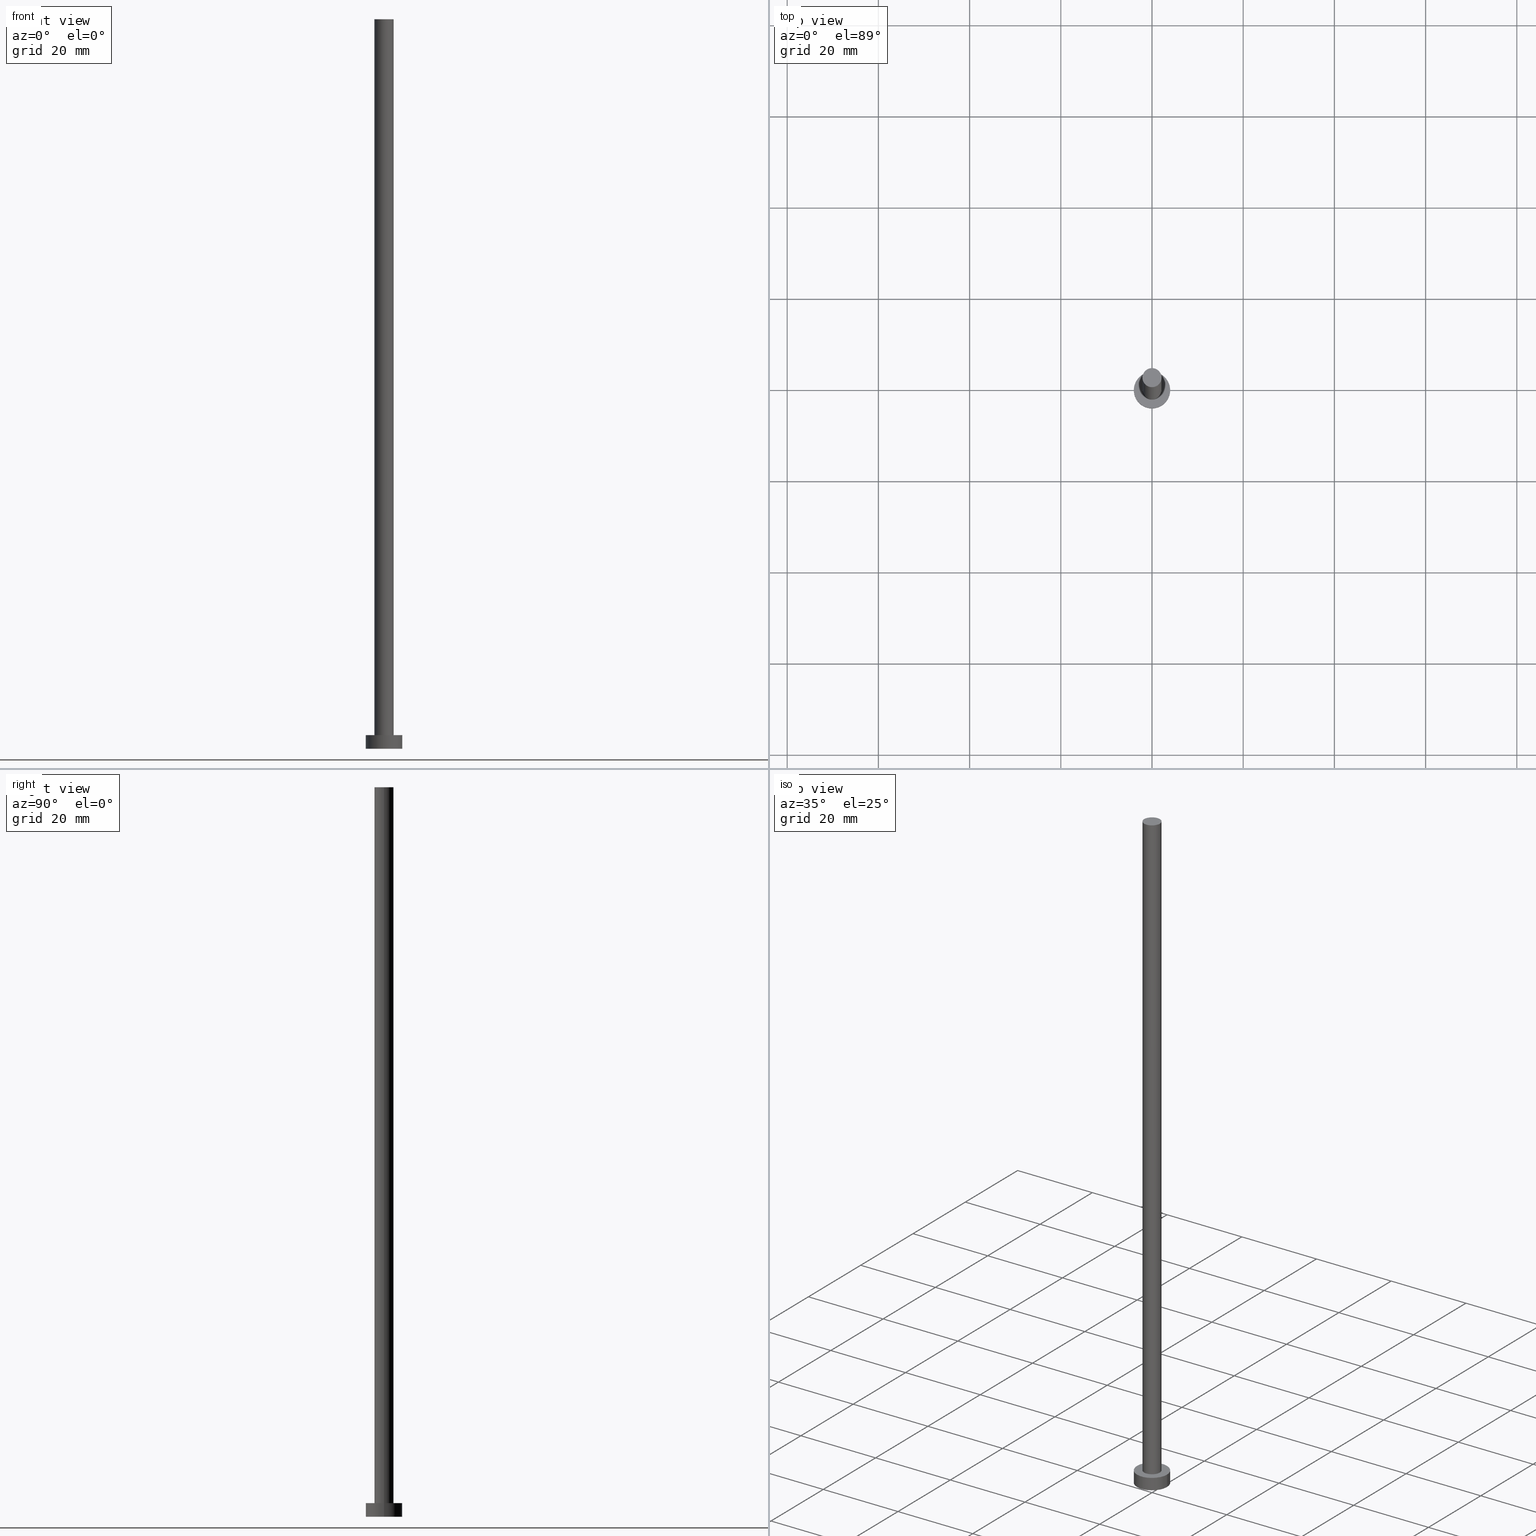
[diagram: canonical four-view strip — front | top / right | iso, engineering-drawing reading convention]
A machine part, canonical four-view strip (front | top / right | iso — engineering-drawing reading convention). The complete STEP part file that produces these views, byte-faithful:
ISO-10303-21;
HEADER;
FILE_DESCRIPTION (( 'STEP AP203' ),
    '1' );
FILE_NAME ('d102.STEP',
    '2023-02-13T13:56:26',
    ( '' ),
    ( '' ),
    'SwSTEP 2.0',
    'SolidWorks 2019',
    '' );
FILE_SCHEMA (( 'CONFIG_CONTROL_DESIGN' ));
ENDSEC;

DATA;
#1 = PERSON_AND_ORGANIZATION ( #66, #15 ) ;
#2 = DIRECTION ( 'NONE',  ( -0.000000000000000000, -0.000000000000000000, -1.000000000000000000 ) ) ;
#3 = APPROVAL_ROLE ( '' ) ;
#4 = FACE_OUTER_BOUND ( 'NONE', #239, .T. ) ;
#5 = DIRECTION ( 'NONE',  ( 1.000000000000000000, 0.000000000000000000, 0.000000000000000000 ) ) ;
#6 = AXIS2_PLACEMENT_3D ( 'NONE', #179, #98, #196 ) ;
#7 = COORDINATED_UNIVERSAL_TIME_OFFSET ( 1, 0, .AHEAD. ) ;
#8 = DIRECTION ( 'NONE',  ( 1.000000000000000000, 0.000000000000000000, 0.000000000000000000 ) ) ;
#9 = CIRCLE ( 'NONE', #189, 2.100000000000000089 ) ;
#10 = FACE_OUTER_BOUND ( 'NONE', #88, .T. ) ;
#11 = EDGE_LOOP ( 'NONE', ( #150, #210, #216, #167 ) ) ;
#12 = CARTESIAN_POINT ( 'NONE',  ( 0.000000000000000000, 0.000000000000000000, 160.0000000000000000 ) ) ;
#13 = CARTESIAN_POINT ( 'NONE',  ( 0.000000000000000000, 0.000000000000000000, 3.000000000000000000 ) ) ;
#14 = PERSON_AND_ORGANIZATION_ROLE ( 'creator' ) ;
#15 = ORGANIZATION ( 'NEUR�EN�', 'NEUR�EN�', '' ) ;
#16 = CARTESIAN_POINT ( 'NONE',  ( 2.100000000000000089, 2.571758278209441957E-16, 160.0000000000000000 ) ) ;
#17 = CLOSED_SHELL ( 'NONE', ( #184, #148, #52, #107, #194, #221, #176 ) ) ;
#18 = CARTESIAN_POINT ( 'NONE',  ( -4.000000000000000000, 0.000000000000000000, 3.000000000000000000 ) ) ;
#19 = PERSON_AND_ORGANIZATION_ROLE ( 'creator' ) ;
#20 =( GEOMETRIC_REPRESENTATION_CONTEXT ( 3 ) GLOBAL_UNCERTAINTY_ASSIGNED_CONTEXT ( ( #95 ) ) GLOBAL_UNIT_ASSIGNED_CONTEXT ( ( #200, #193, #54 ) ) REPRESENTATION_CONTEXT ( 'NONE', 'WORKASPACE' ) );
#21 = CARTESIAN_POINT ( 'NONE',  ( 0.000000000000000000, 0.000000000000000000, 3.000000000000000000 ) ) ;
#22 = EDGE_LOOP ( 'NONE', ( #164, #145 ) ) ;
#23 = CYLINDRICAL_SURFACE ( 'NONE', #38, 4.000000000000000000 ) ;
#24 = CC_DESIGN_SECURITY_CLASSIFICATION ( #211, ( #229 ) ) ;
#25 = CYLINDRICAL_SURFACE ( 'NONE', #68, 2.100000000000000089 ) ;
#26 = AXIS2_PLACEMENT_3D ( 'NONE', #41, #105, #37 ) ;
#27 = APPROVAL_STATUS ( 'not_yet_approved' ) ;
#28 = CC_DESIGN_DATE_AND_TIME_ASSIGNMENT ( #30, #100, ( #211 ) ) ;
#29 = CARTESIAN_POINT ( 'NONE',  ( -4.000000000000000000, 0.000000000000000000, 0.000000000000000000 ) ) ;
#30 = DATE_AND_TIME ( #79, #246 ) ;
#31 = FACE_OUTER_BOUND ( 'NONE', #59, .T. ) ;
#32 = AXIS2_PLACEMENT_3D ( 'NONE', #80, #253, #213 ) ;
#33 = DATE_AND_TIME ( #178, #177 ) ;
#34 = PRODUCT ( 'd102', 'd102', '', ( #185 ) ) ;
#35 = COORDINATED_UNIVERSAL_TIME_OFFSET ( 1, 0, .AHEAD. ) ;
#36 = EDGE_LOOP ( 'NONE', ( #84, #129 ) ) ;
#37 = DIRECTION ( 'NONE',  ( 1.000000000000000000, 0.000000000000000000, 0.000000000000000000 ) ) ;
#38 = AXIS2_PLACEMENT_3D ( 'NONE', #47, #170, #191 ) ;
#39 = COORDINATED_UNIVERSAL_TIME_OFFSET ( 1, 0, .AHEAD. ) ;
#40 = DIRECTION ( 'NONE',  ( 1.000000000000000000, 0.000000000000000000, 0.000000000000000000 ) ) ;
#41 = CARTESIAN_POINT ( 'NONE',  ( 0.000000000000000000, 0.000000000000000000, 160.0000000000000000 ) ) ;
#42 = DIRECTION ( 'NONE',  ( 0.000000000000000000, 0.000000000000000000, 1.000000000000000000 ) ) ;
#43 = DIRECTION ( 'NONE',  ( 0.000000000000000000, 0.000000000000000000, 1.000000000000000000 ) ) ;
#44 = SHAPE_DEFINITION_REPRESENTATION ( #251, #173 ) ;
#45 = EDGE_CURVE ( 'NONE', #94, #146, #151, .T. ) ;
#46 = AXIS2_PLACEMENT_3D ( 'NONE', #13, #175, #78 ) ;
#47 = CARTESIAN_POINT ( 'NONE',  ( 0.000000000000000000, 0.000000000000000000, 3.000000000000000000 ) ) ;
#48 = ORIENTED_EDGE ( 'NONE', *, *, #228, .T. ) ;
#49 = PLANE ( 'NONE',  #50 ) ;
#50 = AXIS2_PLACEMENT_3D ( 'NONE', #12, #91, #96 ) ;
#51 = AXIS2_PLACEMENT_3D ( 'NONE', #204, #65, #110 ) ;
#52 = ADVANCED_FACE ( 'NONE', ( #4 ), #121, .T. ) ;
#53 = LOCAL_TIME ( 14, 56, 26.00000000000000000, #39 ) ;
#54 =( NAMED_UNIT ( * ) SI_UNIT ( $, .STERADIAN. ) SOLID_ANGLE_UNIT ( ) );
#55 = CC_DESIGN_PERSON_AND_ORGANIZATION_ASSIGNMENT ( #62, #180, ( #34 ) ) ;
#56 = AXIS2_PLACEMENT_3D ( 'NONE', #64, #42, #5 ) ;
#57 = CARTESIAN_POINT ( 'NONE',  ( 2.100000000000000089, 2.571758278209441957E-16, 3.000000000000000000 ) ) ;
#58 = PERSON_AND_ORGANIZATION ( #66, #15 ) ;
#59 = EDGE_LOOP ( 'NONE', ( #128, #133, #69, #114 ) ) ;
#60 = CARTESIAN_POINT ( 'NONE',  ( -2.100000000000000089, 0.000000000000000000, 160.0000000000000000 ) ) ;
#61 = CARTESIAN_POINT ( 'NONE',  ( -2.100000000000000089, 0.000000000000000000, 3.000000000000000000 ) ) ;
#62 = PERSON_AND_ORGANIZATION ( #66, #15 ) ;
#63 = DIRECTION ( 'NONE',  ( -0.000000000000000000, -0.000000000000000000, -1.000000000000000000 ) ) ;
#64 = CARTESIAN_POINT ( 'NONE',  ( 0.000000000000000000, 0.000000000000000000, 0.000000000000000000 ) ) ;
#65 = DIRECTION ( 'NONE',  ( 0.000000000000000000, 0.000000000000000000, 1.000000000000000000 ) ) ;
#66 = PERSON ( 'NEUR�EN�', 'NEUR�EN�', 'NEUR�EN�', ('NEUR�EN�'), ('NEUR�EN�'), ('NEUR�EN�') ) ;
#67 = DIRECTION ( 'NONE',  ( -1.000000000000000000, 0.000000000000000000, 0.000000000000000000 ) ) ;
#68 = AXIS2_PLACEMENT_3D ( 'NONE', #113, #187, #89 ) ;
#69 = ORIENTED_EDGE ( 'NONE', *, *, #76, .T. ) ;
#70 = CC_DESIGN_PERSON_AND_ORGANIZATION_ASSIGNMENT ( #102, #14, ( #229 ) ) ;
#71 = AXIS2_PLACEMENT_3D ( 'NONE', #226, #43, #127 ) ;
#72 = EDGE_CURVE ( 'NONE', #117, #208, #242, .T. ) ;
#73 = APPROVAL_DATE_TIME ( #112, #243 ) ;
#74 = EDGE_CURVE ( 'NONE', #208, #120, #104, .T. ) ;
#75 = VECTOR ( 'NONE', #2, 1000.000000000000000 ) ;
#76 = EDGE_CURVE ( 'NONE', #146, #92, #86, .T. ) ;
#77 = DIRECTION ( 'NONE',  ( 1.000000000000000000, 0.000000000000000000, 0.000000000000000000 ) ) ;
#78 = DIRECTION ( 'NONE',  ( 1.000000000000000000, 0.000000000000000000, 0.000000000000000000 ) ) ;
#79 = CALENDAR_DATE ( 2023, 13, 2 ) ;
#80 = CARTESIAN_POINT ( 'NONE',  ( 0.000000000000000000, 0.000000000000000000, 0.000000000000000000 ) ) ;
#81 = CARTESIAN_POINT ( 'NONE',  ( 4.000000000000000000, 4.898587196589412829E-16, 3.000000000000000000 ) ) ;
#82 = CC_DESIGN_APPROVAL ( #87, ( #225 ) ) ;
#83 = DIRECTION ( 'NONE',  ( 0.000000000000000000, 0.000000000000000000, 1.000000000000000000 ) ) ;
#84 = ORIENTED_EDGE ( 'NONE', *, *, #74, .F. ) ;
#85 = CALENDAR_DATE ( 2023, 13, 2 ) ;
#86 = LINE ( 'NONE', #163, #234 ) ;
#87 = APPROVAL ( #222, 'NEUR�EN�' ) ;
#88 = EDGE_LOOP ( 'NONE', ( #149, #247 ) ) ;
#89 = DIRECTION ( 'NONE',  ( -1.000000000000000000, 0.000000000000000000, 0.000000000000000000 ) ) ;
#90 = AXIS2_PLACEMENT_3D ( 'NONE', #141, #183, #217 ) ;
#91 = DIRECTION ( 'NONE',  ( 0.000000000000000000, 0.000000000000000000, 1.000000000000000000 ) ) ;
#92 = VERTEX_POINT ( 'NONE', #61 ) ;
#93 = VECTOR ( 'NONE', #118, 1000.000000000000000 ) ;
#94 = VERTEX_POINT ( 'NONE', #143 ) ;
#95 = UNCERTAINTY_MEASURE_WITH_UNIT (LENGTH_MEASURE( 1.000000000000000082E-05 ), #200, 'distance_accuracy_value', 'NONE');
#96 = DIRECTION ( 'NONE',  ( 1.000000000000000000, 0.000000000000000000, -0.000000000000000000 ) ) ;
#97 = ORIENTED_EDGE ( 'NONE', *, *, #147, .T. ) ;
#98 = DIRECTION ( 'NONE',  ( -0.000000000000000000, -0.000000000000000000, -1.000000000000000000 ) ) ;
#99 = LINE ( 'NONE', #254, #93 ) ;
#100 = DATE_TIME_ROLE ( 'classification_date' ) ;
#101 = APPROVAL_ROLE ( '' ) ;
#102 = PERSON_AND_ORGANIZATION ( #66, #15 ) ;
#103 = APPLICATION_PROTOCOL_DEFINITION ( 'international standard', 'config_control_design', 1994, #199 ) ;
#104 = CIRCLE ( 'NONE', #144, 4.000000000000000000 ) ;
#105 = DIRECTION ( 'NONE',  ( 0.000000000000000000, 0.000000000000000000, 1.000000000000000000 ) ) ;
#106 = APPROVAL_PERSON_ORGANIZATION ( #58, #250, #215 ) ;
#107 = ADVANCED_FACE ( 'NONE', ( #158, #125 ), #157, .T. ) ;
#108 = CARTESIAN_POINT ( 'NONE',  ( 0.000000000000000000, 0.000000000000000000, 0.000000000000000000 ) ) ;
#109 = DATE_AND_TIME ( #123, #53 ) ;
#110 = DIRECTION ( 'NONE',  ( 1.000000000000000000, 0.000000000000000000, 0.000000000000000000 ) ) ;
#111 = EDGE_CURVE ( 'NONE', #146, #94, #166, .T. ) ;
#112 = DATE_AND_TIME ( #126, #132 ) ;
#113 = CARTESIAN_POINT ( 'NONE',  ( 0.000000000000000000, 0.000000000000000000, 160.0000000000000000 ) ) ;
#114 = ORIENTED_EDGE ( 'NONE', *, *, #131, .T. ) ;
#115 = CIRCLE ( 'NONE', #51, 2.100000000000000089 ) ;
#116 = EDGE_LOOP ( 'NONE', ( #209, #48, #171, #249 ) ) ;
#117 = VERTEX_POINT ( 'NONE', #240 ) ;
#118 = DIRECTION ( 'NONE',  ( -0.000000000000000000, -0.000000000000000000, -1.000000000000000000 ) ) ;
#119 = CIRCLE ( 'NONE', #32, 4.000000000000000000 ) ;
#120 = VERTEX_POINT ( 'NONE', #124 ) ;
#121 = CYLINDRICAL_SURFACE ( 'NONE', #218, 4.000000000000000000 ) ;
#122 = APPROVAL_PERSON_ORGANIZATION ( #142, #87, #3 ) ;
#123 = CALENDAR_DATE ( 2023, 13, 2 ) ;
#124 = CARTESIAN_POINT ( 'NONE',  ( 4.000000000000000000, 4.898587196589412829E-16, 0.000000000000000000 ) ) ;
#125 = FACE_OUTER_BOUND ( 'NONE', #134, .T. ) ;
#126 = CALENDAR_DATE ( 2023, 13, 2 ) ;
#127 = DIRECTION ( 'NONE',  ( 1.000000000000000000, 0.000000000000000000, -0.000000000000000000 ) ) ;
#128 = ORIENTED_EDGE ( 'NONE', *, *, #228, .F. ) ;
#129 = ORIENTED_EDGE ( 'NONE', *, *, #227, .F. ) ;
#130 = MANIFOLD_SOLID_BREP ( 'P�idat vysunut�m3', #17 ) ;
#131 = EDGE_CURVE ( 'NONE', #92, #244, #115, .T. ) ;
#132 = LOCAL_TIME ( 14, 56, 26.00000000000000000, #152 ) ;
#133 = ORIENTED_EDGE ( 'NONE', *, *, #111, .F. ) ;
#134 = EDGE_LOOP ( 'NONE', ( #168, #97 ) ) ;
#135 = AXIS2_PLACEMENT_3D ( 'NONE', #206, #182, #40 ) ;
#136 = LOCAL_TIME ( 14, 56, 26.00000000000000000, #7 ) ;
#137 = PERSON_AND_ORGANIZATION_ROLE ( 'classification_officer' ) ;
#138 = APPLICATION_CONTEXT ( 'configuration controlled 3d designs of mechanical parts and assemblies' ) ;
#139 = CC_DESIGN_APPROVAL ( #250, ( #229 ) ) ;
#140 = APPROVAL_STATUS ( 'not_yet_approved' ) ;
#141 = CARTESIAN_POINT ( 'NONE',  ( 0.000000000000000000, 0.000000000000000000, 3.000000000000000000 ) ) ;
#142 = PERSON_AND_ORGANIZATION ( #66, #15 ) ;
#143 = CARTESIAN_POINT ( 'NONE',  ( 2.100000000000000089, 2.571758278209441957E-16, 160.0000000000000000 ) ) ;
#144 = AXIS2_PLACEMENT_3D ( 'NONE', #108, #83, #8 ) ;
#145 = ORIENTED_EDGE ( 'NONE', *, *, #162, .F. ) ;
#146 = VERTEX_POINT ( 'NONE', #60 ) ;
#147 = EDGE_CURVE ( 'NONE', #207, #117, #201, .T. ) ;
#148 = ADVANCED_FACE ( 'NONE', ( #231 ), #23, .T. ) ;
#149 = ORIENTED_EDGE ( 'NONE', *, *, #111, .T. ) ;
#150 = ORIENTED_EDGE ( 'NONE', *, *, #147, .F. ) ;
#151 = CIRCLE ( 'NONE', #26, 2.100000000000000089 ) ;
#152 = COORDINATED_UNIVERSAL_TIME_OFFSET ( 1, 0, .AHEAD. ) ;
#153 = PERSON_AND_ORGANIZATION ( #66, #15 ) ;
#154 = LINE ( 'NONE', #16, #75 ) ;
#155 = APPROVAL_DATE_TIME ( #109, #87 ) ;
#156 = ORIENTED_EDGE ( 'NONE', *, *, #72, .T. ) ;
#157 = PLANE ( 'NONE',  #71 ) ;
#158 = FACE_BOUND ( 'NONE', #22, .T. ) ;
#159 = CIRCLE ( 'NONE', #46, 4.000000000000000000 ) ;
#160 = CC_DESIGN_PERSON_AND_ORGANIZATION_ASSIGNMENT ( #224, #19, ( #225 ) ) ;
#161 = DATE_AND_TIME ( #85, #136 ) ;
#162 = EDGE_CURVE ( 'NONE', #244, #92, #9, .T. ) ;
#163 = CARTESIAN_POINT ( 'NONE',  ( -2.100000000000000089, 0.000000000000000000, 160.0000000000000000 ) ) ;
#164 = ORIENTED_EDGE ( 'NONE', *, *, #131, .F. ) ;
#165 = AXIS2_PLACEMENT_3D ( 'NONE', #235, #214, #237 ) ;
#166 = CIRCLE ( 'NONE', #135, 2.100000000000000089 ) ;
#167 = ORIENTED_EDGE ( 'NONE', *, *, #72, .F. ) ;
#168 = ORIENTED_EDGE ( 'NONE', *, *, #186, .T. ) ;
#169 = PRODUCT_RELATED_PRODUCT_CATEGORY ( 'detail', '', ( #34 ) ) ;
#170 = DIRECTION ( 'NONE',  ( -0.000000000000000000, -0.000000000000000000, -1.000000000000000000 ) ) ;
#171 = ORIENTED_EDGE ( 'NONE', *, *, #162, .T. ) ;
#172 = ORIENTED_EDGE ( 'NONE', *, *, #74, .T. ) ;
#173 = ADVANCED_BREP_SHAPE_REPRESENTATION ( 'd102', ( #130, #56 ), #20 ) ;
#174 = FACE_OUTER_BOUND ( 'NONE', #116, .T. ) ;
#175 = DIRECTION ( 'NONE',  ( 0.000000000000000000, 0.000000000000000000, 1.000000000000000000 ) ) ;
#176 = ADVANCED_FACE ( 'NONE', ( #10 ), #49, .T. ) ;
#177 = LOCAL_TIME ( 14, 56, 26.00000000000000000, #35 ) ;
#178 = CALENDAR_DATE ( 2023, 13, 2 ) ;
#179 = CARTESIAN_POINT ( 'NONE',  ( 0.000000000000000000, 0.000000000000000000, 160.0000000000000000 ) ) ;
#180 = PERSON_AND_ORGANIZATION_ROLE ( 'design_owner' ) ;
#181 = CC_DESIGN_PERSON_AND_ORGANIZATION_ASSIGNMENT ( #153, #137, ( #211 ) ) ;
#182 = DIRECTION ( 'NONE',  ( 0.000000000000000000, 0.000000000000000000, 1.000000000000000000 ) ) ;
#183 = DIRECTION ( 'NONE',  ( 0.000000000000000000, 0.000000000000000000, 1.000000000000000000 ) ) ;
#184 = ADVANCED_FACE ( 'NONE', ( #174 ), #25, .T. ) ;
#185 = MECHANICAL_CONTEXT ( 'NONE', #199, 'mechanical' ) ;
#186 = EDGE_CURVE ( 'NONE', #117, #207, #159, .T. ) ;
#187 = DIRECTION ( 'NONE',  ( -0.000000000000000000, -0.000000000000000000, -1.000000000000000000 ) ) ;
#188 = EDGE_CURVE ( 'NONE', #207, #120, #99, .T. ) ;
#189 = AXIS2_PLACEMENT_3D ( 'NONE', #21, #248, #77 ) ;
#190 = ORIENTED_EDGE ( 'NONE', *, *, #186, .F. ) ;
#191 = DIRECTION ( 'NONE',  ( -1.000000000000000000, 0.000000000000000000, 0.000000000000000000 ) ) ;
#192 = FACE_OUTER_BOUND ( 'NONE', #36, .T. ) ;
#193 =( NAMED_UNIT ( * ) PLANE_ANGLE_UNIT ( ) SI_UNIT ( $, .RADIAN. ) );
#194 = ADVANCED_FACE ( 'NONE', ( #192 ), #198, .F. ) ;
#195 = APPROVAL_DATE_TIME ( #33, #250 ) ;
#196 = DIRECTION ( 'NONE',  ( -1.000000000000000000, 0.000000000000000000, 0.000000000000000000 ) ) ;
#197 = SECURITY_CLASSIFICATION_LEVEL ( 'unclassified' ) ;
#198 = PLANE ( 'NONE',  #165 ) ;
#199 = APPLICATION_CONTEXT ( 'configuration controlled 3d designs of mechanical parts and assemblies' ) ;
#200 =( LENGTH_UNIT ( ) NAMED_UNIT ( * ) SI_UNIT ( .MILLI., .METRE. ) );
#201 = CIRCLE ( 'NONE', #90, 4.000000000000000000 ) ;
#202 = APPROVAL_PERSON_ORGANIZATION ( #236, #243, #101 ) ;
#203 = CC_DESIGN_PERSON_AND_ORGANIZATION_ASSIGNMENT ( #1, #212, ( #229 ) ) ;
#204 = CARTESIAN_POINT ( 'NONE',  ( 0.000000000000000000, 0.000000000000000000, 3.000000000000000000 ) ) ;
#205 = APPLICATION_PROTOCOL_DEFINITION ( 'international standard', 'config_control_design', 1994, #138 ) ;
#206 = CARTESIAN_POINT ( 'NONE',  ( 0.000000000000000000, 0.000000000000000000, 160.0000000000000000 ) ) ;
#207 = VERTEX_POINT ( 'NONE', #81 ) ;
#208 = VERTEX_POINT ( 'NONE', #29 ) ;
#209 = ORIENTED_EDGE ( 'NONE', *, *, #45, .F. ) ;
#210 = ORIENTED_EDGE ( 'NONE', *, *, #188, .T. ) ;
#211 = SECURITY_CLASSIFICATION ( '', '', #197 ) ;
#212 = PERSON_AND_ORGANIZATION_ROLE ( 'design_supplier' ) ;
#213 = DIRECTION ( 'NONE',  ( 1.000000000000000000, 0.000000000000000000, 0.000000000000000000 ) ) ;
#214 = DIRECTION ( 'NONE',  ( 0.000000000000000000, 0.000000000000000000, 1.000000000000000000 ) ) ;
#215 = APPROVAL_ROLE ( '' ) ;
#216 = ORIENTED_EDGE ( 'NONE', *, *, #227, .T. ) ;
#217 = DIRECTION ( 'NONE',  ( 1.000000000000000000, 0.000000000000000000, 0.000000000000000000 ) ) ;
#218 = AXIS2_PLACEMENT_3D ( 'NONE', #223, #241, #67 ) ;
#219 = DIRECTION ( 'NONE',  ( -0.000000000000000000, -0.000000000000000000, -1.000000000000000000 ) ) ;
#220 = CC_DESIGN_APPROVAL ( #243, ( #211 ) ) ;
#221 = ADVANCED_FACE ( 'NONE', ( #31 ), #255, .T. ) ;
#222 = APPROVAL_STATUS ( 'not_yet_approved' ) ;
#223 = CARTESIAN_POINT ( 'NONE',  ( 0.000000000000000000, 0.000000000000000000, 3.000000000000000000 ) ) ;
#224 = PERSON_AND_ORGANIZATION ( #66, #15 ) ;
#225 = PRODUCT_DEFINITION ( 'NEZN�M�', '', #229, #230 ) ;
#226 = CARTESIAN_POINT ( 'NONE',  ( 0.000000000000000000, 0.000000000000000000, 3.000000000000000000 ) ) ;
#227 = EDGE_CURVE ( 'NONE', #120, #208, #119, .T. ) ;
#228 = EDGE_CURVE ( 'NONE', #94, #244, #154, .T. ) ;
#229 = PRODUCT_DEFINITION_FORMATION_WITH_SPECIFIED_SOURCE ( 'LIBOVOLN�', '', #34, .NOT_KNOWN. ) ;
#230 = DESIGN_CONTEXT ( 'detailed design', #138, 'design' ) ;
#231 = FACE_OUTER_BOUND ( 'NONE', #11, .T. ) ;
#232 = ORIENTED_EDGE ( 'NONE', *, *, #188, .F. ) ;
#233 = CC_DESIGN_DATE_AND_TIME_ASSIGNMENT ( #161, #238, ( #225 ) ) ;
#234 = VECTOR ( 'NONE', #219, 1000.000000000000000 ) ;
#235 = CARTESIAN_POINT ( 'NONE',  ( 0.000000000000000000, 0.000000000000000000, 0.000000000000000000 ) ) ;
#236 = PERSON_AND_ORGANIZATION ( #66, #15 ) ;
#237 = DIRECTION ( 'NONE',  ( 1.000000000000000000, 0.000000000000000000, -0.000000000000000000 ) ) ;
#238 = DATE_TIME_ROLE ( 'creation_date' ) ;
#239 = EDGE_LOOP ( 'NONE', ( #232, #190, #156, #172 ) ) ;
#240 = CARTESIAN_POINT ( 'NONE',  ( -4.000000000000000000, 0.000000000000000000, 3.000000000000000000 ) ) ;
#241 = DIRECTION ( 'NONE',  ( -0.000000000000000000, -0.000000000000000000, -1.000000000000000000 ) ) ;
#242 = LINE ( 'NONE', #18, #245 ) ;
#243 = APPROVAL ( #27, 'NEUR�EN�' ) ;
#244 = VERTEX_POINT ( 'NONE', #57 ) ;
#245 = VECTOR ( 'NONE', #63, 1000.000000000000000 ) ;
#246 = LOCAL_TIME ( 14, 56, 26.00000000000000000, #252 ) ;
#247 = ORIENTED_EDGE ( 'NONE', *, *, #45, .T. ) ;
#248 = DIRECTION ( 'NONE',  ( 0.000000000000000000, 0.000000000000000000, 1.000000000000000000 ) ) ;
#249 = ORIENTED_EDGE ( 'NONE', *, *, #76, .F. ) ;
#250 = APPROVAL ( #140, 'NEUR�EN�' ) ;
#251 = PRODUCT_DEFINITION_SHAPE ( 'NONE', 'NONE',  #225 ) ;
#252 = COORDINATED_UNIVERSAL_TIME_OFFSET ( 1, 0, .AHEAD. ) ;
#253 = DIRECTION ( 'NONE',  ( 0.000000000000000000, 0.000000000000000000, 1.000000000000000000 ) ) ;
#254 = CARTESIAN_POINT ( 'NONE',  ( 4.000000000000000000, 4.898587196589412829E-16, 3.000000000000000000 ) ) ;
#255 = CYLINDRICAL_SURFACE ( 'NONE', #6, 2.100000000000000089 ) ;
ENDSEC;
END-ISO-10303-21;
